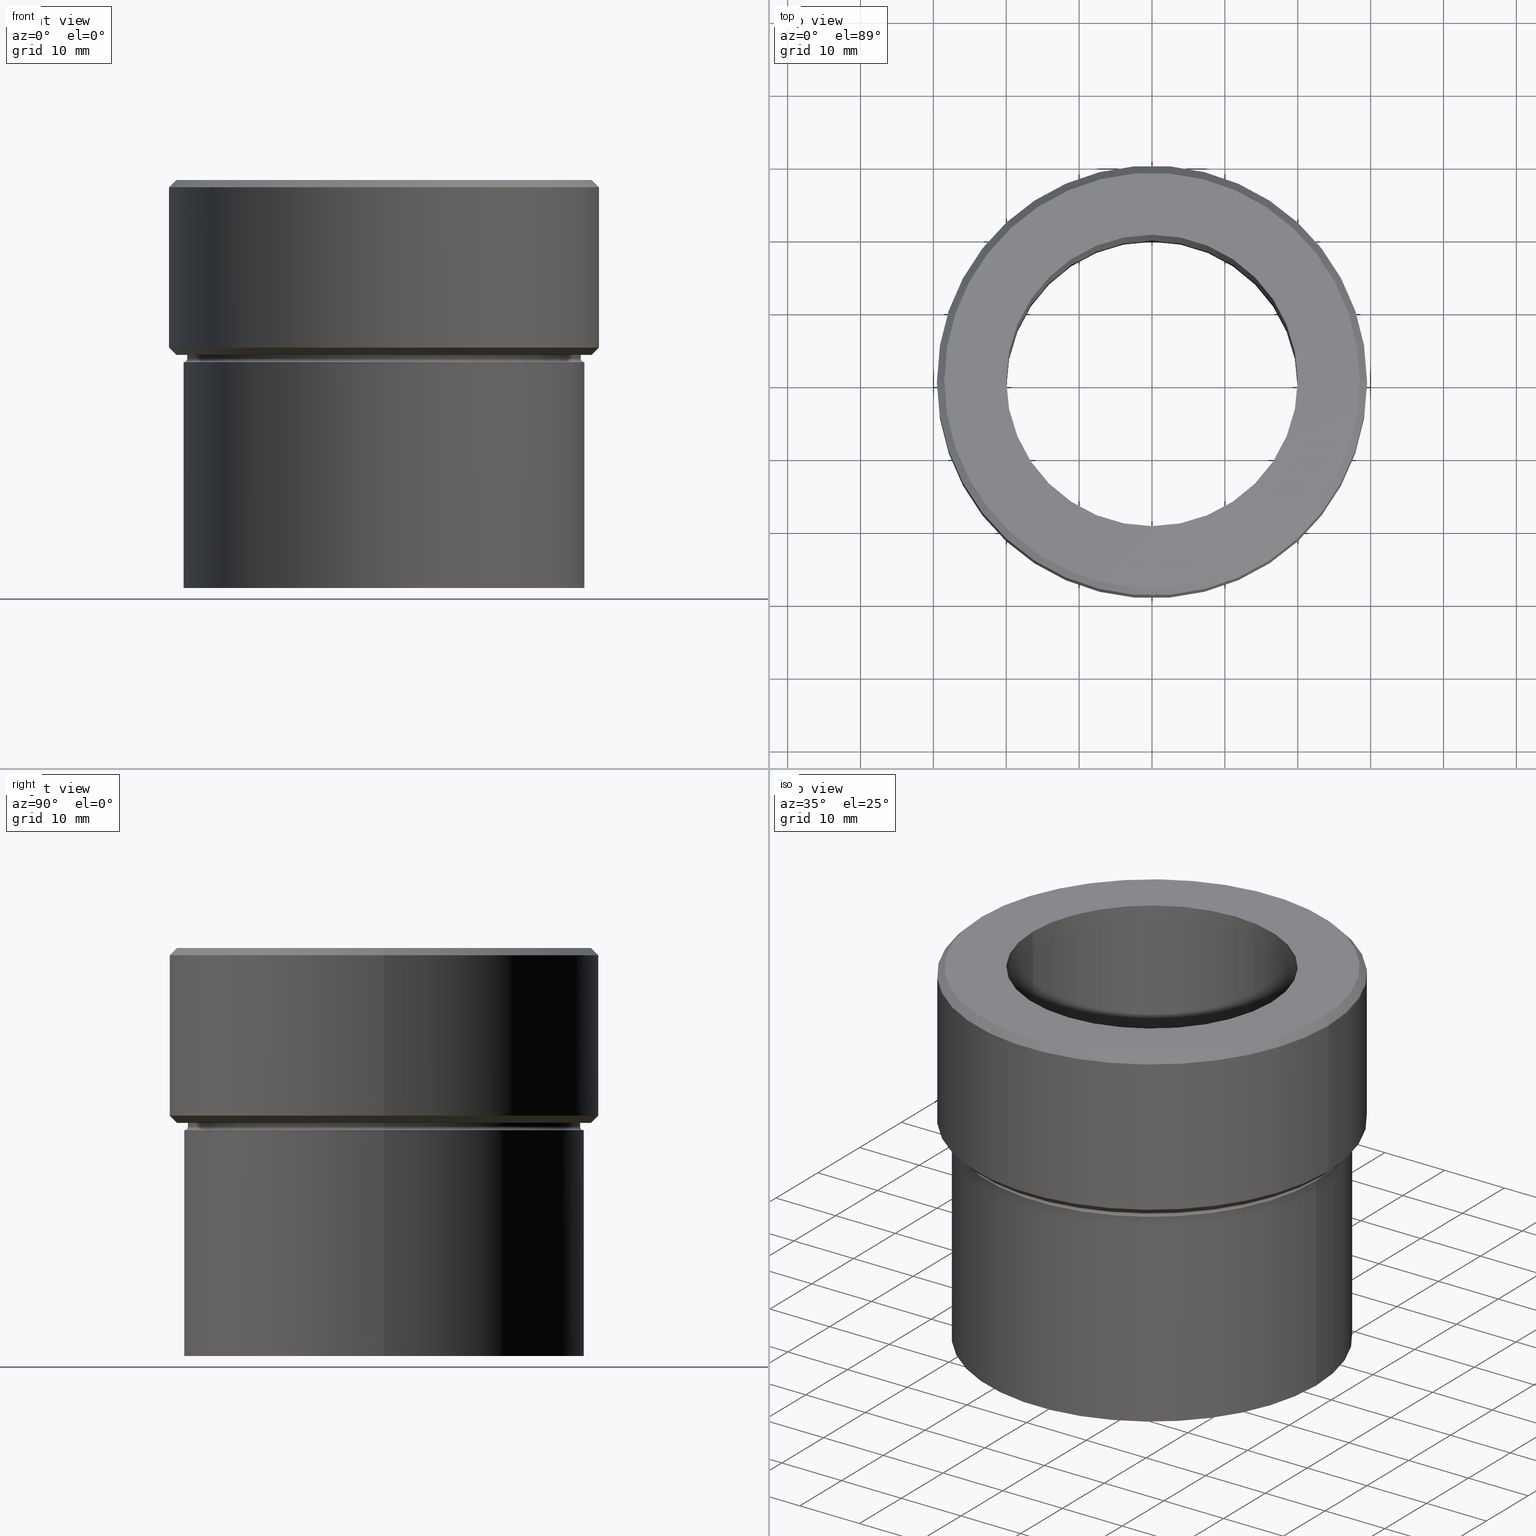
[diagram: canonical four-view strip — front | top / right | iso, engineering-drawing reading convention]
A machine part, canonical four-view strip (front | top / right | iso — engineering-drawing reading convention). The complete STEP part file that produces these views, byte-faithful:
ISO-10303-21;
HEADER;
FILE_DESCRIPTION (( 'STEP AP203' ),
    '1' );
FILE_NAME ('798a.STEP',
    '2024-01-08T12:24:33',
    ( '' ),
    ( '' ),
    'SwSTEP 2.0',
    'SolidWorks 2019',
    '' );
FILE_SCHEMA (( 'CONFIG_CONTROL_DESIGN' ));
ENDSEC;

DATA;
#1 = LINE ( 'NONE', #43, #47 ) ;
#2 = DIRECTION ( 'NONE',  ( 1.000000000000000000, 0.000000000000000000, 0.000000000000000000 ) ) ;
#3 = DIRECTION ( 'NONE',  ( 0.000000000000000000, 0.000000000000000000, -1.000000000000000000 ) ) ;
#4 = CC_DESIGN_DATE_AND_TIME_ASSIGNMENT ( #254, #506, ( #473 ) ) ;
#5 = APPROVAL_ROLE ( '' ) ;
#6 = ORIENTED_EDGE ( 'NONE', *, *, #100, .F. ) ;
#7 = CARTESIAN_POINT ( 'NONE',  ( -28.49999999999998224, 0.000000000000000000, 0.000000000000000000 ) ) ;
#8 = DIRECTION ( 'NONE',  ( -0.000000000000000000, -0.000000000000000000, 1.000000000000000000 ) ) ;
#9 = ORIENTED_EDGE ( 'NONE', *, *, #80, .T. ) ;
#10 = DIRECTION ( 'NONE',  ( -0.000000000000000000, -0.000000000000000000, 1.000000000000000000 ) ) ;
#11 = PERSON_AND_ORGANIZATION ( #318, #46 ) ;
#12 = EDGE_LOOP ( 'NONE', ( #245, #308, #94, #331 ) ) ;
#13 = ORIENTED_EDGE ( 'NONE', *, *, #498, .F. ) ;
#14 = CYLINDRICAL_SURFACE ( 'NONE', #385, 27.00000000000000355 ) ;
#15 = AXIS2_PLACEMENT_3D ( 'NONE', #200, #163, #65 ) ;
#16 = EDGE_LOOP ( 'NONE', ( #6, #397, #486, #30 ) ) ;
#17 = CIRCLE ( 'NONE', #294, 28.49999999999998224 ) ;
#18 = ADVANCED_FACE ( 'NONE', ( #404 ), #476, .T. ) ;
#19 = DIRECTION ( 'NONE',  ( 0.000000000000000000, 0.000000000000000000, -1.000000000000000000 ) ) ;
#20 = CYLINDRICAL_SURFACE ( 'NONE', #337, 20.00000000000000000 ) ;
#21 = COORDINATED_UNIVERSAL_TIME_OFFSET ( 1, 0, .AHEAD. ) ;
#22 = DESIGN_CONTEXT ( 'detailed design', #230, 'design' ) ;
#23 = CARTESIAN_POINT ( 'NONE',  ( 0.000000000000000000, 0.000000000000000000, -24.49999999999999645 ) ) ;
#24 = ORIENTED_EDGE ( 'NONE', *, *, #222, .T. ) ;
#25 = ORIENTED_EDGE ( 'NONE', *, *, #148, .F. ) ;
#26 = CARTESIAN_POINT ( 'NONE',  ( 28.49999999999998224, 0.000000000000000000, -24.00000000000000000 ) ) ;
#27 = PLANE ( 'NONE',  #411 ) ;
#28 = CC_DESIGN_APPROVAL ( #186, ( #483 ) ) ;
#29 = AXIS2_PLACEMENT_3D ( 'NONE', #415, #232, #413 ) ;
#30 = ORIENTED_EDGE ( 'NONE', *, *, #182, .T. ) ;
#31 = EDGE_CURVE ( 'NONE', #485, #124, #392, .T. ) ;
#32 = DIRECTION ( 'NONE',  ( -0.000000000000000000, -0.000000000000000000, 1.000000000000000000 ) ) ;
#33 = ADVANCED_FACE ( 'NONE', ( #363, #224 ), #275, .T. ) ;
#34 = EDGE_LOOP ( 'NONE', ( #296, #93, #505, #417 ) ) ;
#35 = EDGE_LOOP ( 'NONE', ( #342, #24, #64, #146 ) ) ;
#36 = VERTEX_POINT ( 'NONE', #113 ) ;
#37 = AXIS2_PLACEMENT_3D ( 'NONE', #229, #281, #42 ) ;
#38 = ADVANCED_FACE ( 'NONE', ( #450 ), #77, .T. ) ;
#39 = CARTESIAN_POINT ( 'NONE',  ( 0.000000000000000000, 0.000000000000000000, 0.000000000000000000 ) ) ;
#40 = CIRCLE ( 'NONE', #190, 29.50000000000000000 ) ;
#41 = CIRCLE ( 'NONE', #111, 28.49999999999998224 ) ;
#42 = DIRECTION ( 'NONE',  ( -1.000000000000000000, 1.224646799147349509E-16, 0.000000000000000000 ) ) ;
#43 = CARTESIAN_POINT ( 'NONE',  ( 27.50000000000000355, 0.000000000000000000, 0.000000000000000000 ) ) ;
#44 = AXIS2_PLACEMENT_3D ( 'NONE', #272, #184, #435 ) ;
#45 = EDGE_CURVE ( 'NONE', #189, #121, #409, .T. ) ;
#46 = ORGANIZATION ( 'NEUR�EN�', 'NEUR�EN�', '' ) ;
#47 = VECTOR ( 'NONE', #375, 1000.000000000000000 ) ;
#48 = PERSON_AND_ORGANIZATION ( #318, #46 ) ;
#49 = EDGE_LOOP ( 'NONE', ( #131, #285 ) ) ;
#50 = CARTESIAN_POINT ( 'NONE',  ( -27.00000000000000355, 3.306546357697854128E-15, -24.49999999999999645 ) ) ;
#51 = DIRECTION ( 'NONE',  ( -1.000000000000000000, 0.000000000000000000, 0.000000000000000000 ) ) ;
#52 = EDGE_LOOP ( 'NONE', ( #393, #389 ) ) ;
#53 = DIRECTION ( 'NONE',  ( -1.000000000000000000, 0.000000000000000000, 0.000000000000000000 ) ) ;
#54 = ADVANCED_FACE ( 'NONE', ( #322 ), #278, .T. ) ;
#55 = ORIENTED_EDGE ( 'NONE', *, *, #119, .T. ) ;
#56 = LINE ( 'NONE', #508, #151 ) ;
#57 = CARTESIAN_POINT ( 'NONE',  ( -28.49999999999998224, 3.551475717527322452E-15, -24.00000000000000000 ) ) ;
#58 = AXIS2_PLACEMENT_3D ( 'NONE', #106, #403, #218 ) ;
#59 = ORIENTED_EDGE ( 'NONE', *, *, #530, .T. ) ;
#60 = AXIS2_PLACEMENT_3D ( 'NONE', #23, #10, #164 ) ;
#61 = DIRECTION ( 'NONE',  ( 1.000000000000000000, 0.000000000000000000, 0.000000000000000000 ) ) ;
#62 = CARTESIAN_POINT ( 'NONE',  ( 0.000000000000000000, 0.000000000000000000, -1.000000000000004441 ) ) ;
#63 = COORDINATED_UNIVERSAL_TIME_OFFSET ( 1, 0, .AHEAD. ) ;
#64 = ORIENTED_EDGE ( 'NONE', *, *, #142, .T. ) ;
#65 = DIRECTION ( 'NONE',  ( 1.000000000000000000, 0.000000000000000000, 0.000000000000000000 ) ) ;
#66 = CARTESIAN_POINT ( 'NONE',  ( 0.000000000000000000, 0.000000000000000000, 0.000000000000000000 ) ) ;
#67 = EDGE_CURVE ( 'NONE', #179, #519, #478, .T. ) ;
#68 = AXIS2_PLACEMENT_3D ( 'NONE', #324, #246, #423 ) ;
#69 = CIRCLE ( 'NONE', #60, 27.00000000000000355 ) ;
#70 = EDGE_CURVE ( 'NONE', #128, #36, #176, .T. ) ;
#71 = DIRECTION ( 'NONE',  ( -0.7071067811865500152, 8.659560562354963673E-17, 0.7071067811865451302 ) ) ;
#72 = AXIS2_PLACEMENT_3D ( 'NONE', #292, #467, #340 ) ;
#73 = ORIENTED_EDGE ( 'NONE', *, *, #31, .T. ) ;
#74 = VERTEX_POINT ( 'NONE', #7 ) ;
#75 = DIRECTION ( 'NONE',  ( -0.000000000000000000, -0.000000000000000000, 1.000000000000000000 ) ) ;
#76 = PRODUCT_DEFINITION_SHAPE ( 'NONE', 'NONE',  #473 ) ;
#77 = CYLINDRICAL_SURFACE ( 'NONE', #480, 27.00000000000000355 ) ;
#78 = EDGE_CURVE ( 'NONE', #519, #179, #206, .T. ) ;
#79 = CARTESIAN_POINT ( 'NONE',  ( -20.00000000000000000, 2.449293598294706513E-15, -75.00000000000000000 ) ) ;
#80 = EDGE_CURVE ( 'NONE', #124, #335, #329, .T. ) ;
#81 = CARTESIAN_POINT ( 'NONE',  ( 0.000000000000000000, 0.000000000000000000, -56.00000000000000711 ) ) ;
#82 = CARTESIAN_POINT ( 'NONE',  ( 0.000000000000000000, 0.000000000000000000, -24.99999999999999645 ) ) ;
#83 = ORIENTED_EDGE ( 'NONE', *, *, #339, .F. ) ;
#84 = CARTESIAN_POINT ( 'NONE',  ( 20.00000000000000000, 0.000000000000000000, 0.000000000000000000 ) ) ;
#85 = ORIENTED_EDGE ( 'NONE', *, *, #45, .T. ) ;
#86 = AXIS2_PLACEMENT_3D ( 'NONE', #491, #196, #372 ) ;
#87 = DIRECTION ( 'NONE',  ( 1.000000000000000000, 0.000000000000000000, 0.000000000000000000 ) ) ;
#88 = VECTOR ( 'NONE', #122, 1000.000000000000000 ) ;
#89 = ORIENTED_EDGE ( 'NONE', *, *, #67, .F. ) ;
#90 = DIRECTION ( 'NONE',  ( -0.000000000000000000, -0.000000000000000000, 1.000000000000000000 ) ) ;
#91 = DIRECTION ( 'NONE',  ( -0.000000000000000000, -0.000000000000000000, 1.000000000000000000 ) ) ;
#92 = EDGE_CURVE ( 'NONE', #128, #255, #457, .T. ) ;
#93 = ORIENTED_EDGE ( 'NONE', *, *, #433, .T. ) ;
#94 = ORIENTED_EDGE ( 'NONE', *, *, #191, .T. ) ;
#95 = CYLINDRICAL_SURFACE ( 'NONE', #105, 29.50000000000000000 ) ;
#96 = SHAPE_DEFINITION_REPRESENTATION ( #76, #357 ) ;
#97 = EDGE_LOOP ( 'NONE', ( #502, #199, #55, #297 ) ) ;
#98 = APPLICATION_PROTOCOL_DEFINITION ( 'international standard', 'config_control_design', 1994, #144 ) ;
#99 = FACE_OUTER_BOUND ( 'NONE', #248, .T. ) ;
#100 = EDGE_CURVE ( 'NONE', #179, #345, #291, .T. ) ;
#101 = APPROVAL_STATUS ( 'not_yet_approved' ) ;
#102 = CARTESIAN_POINT ( 'NONE',  ( 0.000000000000000000, 0.000000000000000000, 0.000000000000000000 ) ) ;
#103 = CARTESIAN_POINT ( 'NONE',  ( 29.50000000000000000, 0.000000000000000000, 0.000000000000000000 ) ) ;
#104 = ORIENTED_EDGE ( 'NONE', *, *, #354, .F. ) ;
#105 = AXIS2_PLACEMENT_3D ( 'NONE', #350, #215, #477 ) ;
#106 = CARTESIAN_POINT ( 'NONE',  ( 0.000000000000000000, 0.000000000000000000, -56.00000000000000711 ) ) ;
#107 = CIRCLE ( 'NONE', #29, 27.00000000000000355 ) ;
#108 = ADVANCED_FACE ( 'NONE', ( #381 ), #437, .T. ) ;
#109 = LOCAL_TIME ( 13, 24, 33.00000000000000000, #496 ) ;
#110 = DIRECTION ( 'NONE',  ( 0.000000000000000000, -0.000000000000000000, 1.000000000000000000 ) ) ;
#111 = AXIS2_PLACEMENT_3D ( 'NONE', #327, #490, #238 ) ;
#112 = CARTESIAN_POINT ( 'NONE',  ( 0.000000000000000000, 0.000000000000000000, -22.99999999999999289 ) ) ;
#113 = CARTESIAN_POINT ( 'NONE',  ( -27.50000000000000355, 3.367778697655222096E-15, -24.99999999999999645 ) ) ;
#114 = APPROVAL ( #101, 'NEUR�EN�' ) ;
#115 = ORIENTED_EDGE ( 'NONE', *, *, #78, .T. ) ;
#116 = VECTOR ( 'NONE', #153, 1000.000000000000000 ) ;
#117 = DIRECTION ( 'NONE',  ( 1.000000000000000000, 0.000000000000000000, 0.000000000000000000 ) ) ;
#118 = APPROVAL_PERSON_ORGANIZATION ( #512, #270, #5 ) ;
#119 = EDGE_CURVE ( 'NONE', #74, #335, #494, .T. ) ;
#120 = CARTESIAN_POINT ( 'NONE',  ( -28.49999999999998224, 0.000000000000000000, 0.000000000000000000 ) ) ;
#121 = VERTEX_POINT ( 'NONE', #369 ) ;
#122 = DIRECTION ( 'NONE',  ( -0.7071067811865512365, 0.000000000000000000, -0.7071067811865439090 ) ) ;
#123 = APPROVAL_STATUS ( 'not_yet_approved' ) ;
#124 = VERTEX_POINT ( 'NONE', #283 ) ;
#125 = CIRCLE ( 'NONE', #58, 27.50000000000000711 ) ;
#126 = VERTEX_POINT ( 'NONE', #84 ) ;
#127 = APPROVAL_ROLE ( '' ) ;
#128 = VERTEX_POINT ( 'NONE', #50 ) ;
#129 = CARTESIAN_POINT ( 'NONE',  ( 0.000000000000000000, 0.000000000000000000, 0.000000000000000000 ) ) ;
#130 = DIRECTION ( 'NONE',  ( 1.000000000000000000, 0.000000000000000000, 0.000000000000000000 ) ) ;
#131 = ORIENTED_EDGE ( 'NONE', *, *, #339, .T. ) ;
#132 = DIRECTION ( 'NONE',  ( 0.000000000000000000, 0.000000000000000000, -1.000000000000000000 ) ) ;
#133 = ORIENTED_EDGE ( 'NONE', *, *, #367, .T. ) ;
#134 = PERSON_AND_ORGANIZATION_ROLE ( 'classification_officer' ) ;
#135 = EDGE_LOOP ( 'NONE', ( #177, #300, #261, #497 ) ) ;
#136 = DIRECTION ( 'NONE',  ( 0.7071067811865500152, 0.000000000000000000, 0.7071067811865451302 ) ) ;
#137 = AXIS2_PLACEMENT_3D ( 'NONE', #344, #509, #61 ) ;
#138 = CC_DESIGN_PERSON_AND_ORGANIZATION_ASSIGNMENT ( #349, #390, ( #152 ) ) ;
#139 = LINE ( 'NONE', #445, #525 ) ;
#140 = DIRECTION ( 'NONE',  ( 0.000000000000000000, 0.000000000000000000, -1.000000000000000000 ) ) ;
#141 = DIRECTION ( 'NONE',  ( -1.000000000000000000, 0.000000000000000000, -0.000000000000000000 ) ) ;
#142 = EDGE_CURVE ( 'NONE', #513, #210, #1, .T. ) ;
#143 = AXIS2_PLACEMENT_3D ( 'NONE', #185, #110, #405 ) ;
#144 = APPLICATION_CONTEXT ( 'configuration controlled 3d designs of mechanical parts and assemblies' ) ;
#145 = CARTESIAN_POINT ( 'NONE',  ( -27.50000000000000355, 3.367778697655222096E-15, 0.000000000000000000 ) ) ;
#146 = ORIENTED_EDGE ( 'NONE', *, *, #454, .F. ) ;
#147 = FACE_BOUND ( 'NONE', #52, .T. ) ;
#148 = EDGE_CURVE ( 'NONE', #273, #255, #107, .T. ) ;
#149 = CIRCLE ( 'NONE', #86, 0.5000000000000004441 ) ;
#150 = ORIENTED_EDGE ( 'NONE', *, *, #481, .F. ) ;
#151 = VECTOR ( 'NONE', #309, 1000.000000000000000 ) ;
#152 = PRODUCT ( '798a', '798a', '', ( #257 ) ) ;
#153 = DIRECTION ( 'NONE',  ( 0.7071067811865512365, 8.659560562354979697E-17, -0.7071067811865439090 ) ) ;
#154 = VECTOR ( 'NONE', #90, 1000.000000000000000 ) ;
#155 = CC_DESIGN_PERSON_AND_ORGANIZATION_ASSIGNMENT ( #48, #159, ( #529 ) ) ;
#156 = CARTESIAN_POINT ( 'NONE',  ( -27.50000000000001066, 3.367778697655222885E-15, -56.00000000000000711 ) ) ;
#157 = DIRECTION ( 'NONE',  ( -0.000000000000000000, -0.000000000000000000, 1.000000000000000000 ) ) ;
#158 = DIRECTION ( 'NONE',  ( -1.000000000000000000, 0.000000000000000000, 0.000000000000000000 ) ) ;
#159 = PERSON_AND_ORGANIZATION_ROLE ( 'creator' ) ;
#160 = DIRECTION ( 'NONE',  ( -0.000000000000000000, -0.000000000000000000, 1.000000000000000000 ) ) ;
#161 = CALENDAR_DATE ( 2024, 8, 1 ) ;
#162 = ORIENTED_EDGE ( 'NONE', *, *, #119, .F. ) ;
#163 = DIRECTION ( 'NONE',  ( -0.000000000000000000, -0.000000000000000000, 1.000000000000000000 ) ) ;
#164 = DIRECTION ( 'NONE',  ( 1.000000000000000000, 0.000000000000000000, 0.000000000000000000 ) ) ;
#165 = ORIENTED_EDGE ( 'NONE', *, *, #142, .F. ) ;
#166 = ADVANCED_FACE ( 'NONE', ( #194 ), #399, .T. ) ;
#167 = CIRCLE ( 'NONE', #341, 28.49999999999998224 ) ;
#168 = DATE_AND_TIME ( #431, #453 ) ;
#169 = ORIENTED_EDGE ( 'NONE', *, *, #354, .T. ) ;
#170 = APPROVAL_DATE_TIME ( #173, #114 ) ;
#171 = DIRECTION ( 'NONE',  ( -0.000000000000000000, -0.000000000000000000, 1.000000000000000000 ) ) ;
#172 = ORIENTED_EDGE ( 'NONE', *, *, #191, .F. ) ;
#173 = DATE_AND_TIME ( #516, #439 ) ;
#174 = LINE ( 'NONE', #514, #312 ) ;
#175 = EDGE_CURVE ( 'NONE', #365, #469, #41, .T. ) ;
#176 = CIRCLE ( 'NONE', #37, 0.5000000000000004441 ) ;
#177 = ORIENTED_EDGE ( 'NONE', *, *, #175, .F. ) ;
#178 = APPLICATION_PROTOCOL_DEFINITION ( 'international standard', 'config_control_design', 1994, #230 ) ;
#179 = VERTEX_POINT ( 'NONE', #418 ) ;
#180 = CC_DESIGN_APPROVAL ( #270, ( #529 ) ) ;
#181 = AXIS2_PLACEMENT_3D ( 'NONE', #219, #32, #364 ) ;
#182 = EDGE_CURVE ( 'NONE', #126, #345, #360, .T. ) ;
#183 = DIRECTION ( 'NONE',  ( -0.000000000000000000, -0.000000000000000000, 1.000000000000000000 ) ) ;
#184 = DIRECTION ( 'NONE',  ( -0.000000000000000000, -0.000000000000000000, 1.000000000000000000 ) ) ;
#185 = CARTESIAN_POINT ( 'NONE',  ( 0.000000000000000000, 0.000000000000000000, 0.000000000000000000 ) ) ;
#186 = APPROVAL ( #123, 'NEUR�EN�' ) ;
#187 = AXIS2_PLACEMENT_3D ( 'NONE', #39, #446, #353 ) ;
#188 = AXIS2_PLACEMENT_3D ( 'NONE', #234, #461, #192 ) ;
#189 = VERTEX_POINT ( 'NONE', #427 ) ;
#190 = AXIS2_PLACEMENT_3D ( 'NONE', #62, #250, #130 ) ;
#191 = EDGE_CURVE ( 'NONE', #487, #273, #56, .T. ) ;
#192 = DIRECTION ( 'NONE',  ( 1.000000000000000000, 0.000000000000000000, 0.000000000000000000 ) ) ;
#193 = ORIENTED_EDGE ( 'NONE', *, *, #78, .F. ) ;
#194 = FACE_OUTER_BOUND ( 'NONE', #135, .T. ) ;
#195 = CLOSED_SHELL ( 'NONE', ( #373, #424, #262, #166, #443, #401, #54, #316, #468, #33, #38, #18, #202, #108, #520, #412, #379 ) ) ;
#196 = DIRECTION ( 'NONE',  ( 0.000000000000000000, -1.000000000000000000, 0.000000000000000000 ) ) ;
#197 = CARTESIAN_POINT ( 'NONE',  ( 0.000000000000000000, 0.000000000000000000, -56.00000000000000711 ) ) ;
#198 = AXIS2_PLACEMENT_3D ( 'NONE', #456, #233, #414 ) ;
#199 = ORIENTED_EDGE ( 'NONE', *, *, #511, .F. ) ;
#200 = CARTESIAN_POINT ( 'NONE',  ( 0.000000000000000000, 0.000000000000000000, 0.000000000000000000 ) ) ;
#201 = CYLINDRICAL_SURFACE ( 'NONE', #503, 20.00000000000000000 ) ;
#202 = ADVANCED_FACE ( 'NONE', ( #355, #395 ), #27, .T. ) ;
#203 = EDGE_LOOP ( 'NONE', ( #73, #9, #507, #252 ) ) ;
#204 = CARTESIAN_POINT ( 'NONE',  ( -27.00000000000000355, 3.306546357697854128E-15, 0.000000000000000000 ) ) ;
#205 = DIRECTION ( 'NONE',  ( -0.000000000000000000, -0.000000000000000000, 1.000000000000000000 ) ) ;
#206 = CIRCLE ( 'NONE', #402, 20.00000000000000000 ) ;
#207 = ORIENTED_EDGE ( 'NONE', *, *, #488, .T. ) ;
#208 = CIRCLE ( 'NONE', #241, 29.50000000000000000 ) ;
#209 = AXIS2_PLACEMENT_3D ( 'NONE', #82, #463, #87 ) ;
#210 = VERTEX_POINT ( 'NONE', #521 ) ;
#211 = EDGE_CURVE ( 'NONE', #121, #335, #442, .T. ) ;
#212 = FACE_OUTER_BOUND ( 'NONE', #16, .T. ) ;
#213 = PERSON_AND_ORGANIZATION ( #318, #46 ) ;
#214 = ORIENTED_EDGE ( 'NONE', *, *, #527, .T. ) ;
#215 = DIRECTION ( 'NONE',  ( -0.000000000000000000, -0.000000000000000000, 1.000000000000000000 ) ) ;
#216 = DIRECTION ( 'NONE',  ( -0.000000000000000000, -0.000000000000000000, 1.000000000000000000 ) ) ;
#217 = CIRCLE ( 'NONE', #181, 27.00000000000000355 ) ;
#218 = DIRECTION ( 'NONE',  ( 1.000000000000000000, 0.000000000000000000, 0.000000000000000000 ) ) ;
#219 = CARTESIAN_POINT ( 'NONE',  ( 0.000000000000000000, 0.000000000000000000, -24.00000000000000000 ) ) ;
#220 = LOCAL_TIME ( 13, 24, 33.00000000000000000, #63 ) ;
#221 = ORIENTED_EDGE ( 'NONE', *, *, #511, .T. ) ;
#222 = EDGE_CURVE ( 'NONE', #426, #513, #125, .T. ) ;
#223 = ORIENTED_EDGE ( 'NONE', *, *, #407, .T. ) ;
#224 = FACE_BOUND ( 'NONE', #465, .T. ) ;
#225 = DIRECTION ( 'NONE',  ( -1.000000000000000000, 0.000000000000000000, 0.000000000000000000 ) ) ;
#226 = DIRECTION ( 'NONE',  ( -0.000000000000000000, -0.000000000000000000, 1.000000000000000000 ) ) ;
#227 = CC_DESIGN_DATE_AND_TIME_ASSIGNMENT ( #168, #501, ( #483 ) ) ;
#228 = AXIS2_PLACEMENT_3D ( 'NONE', #371, #160, #2 ) ;
#229 = CARTESIAN_POINT ( 'NONE',  ( -27.50000000000000355, 3.367778697655222096E-15, -24.49999999999999645 ) ) ;
#230 = APPLICATION_CONTEXT ( 'configuration controlled 3d designs of mechanical parts and assemblies' ) ;
#231 = TOROIDAL_SURFACE ( 'NONE', #410, 27.50000000000000355, 0.5000000000000000000 ) ;
#232 = DIRECTION ( 'NONE',  ( -0.000000000000000000, -0.000000000000000000, 1.000000000000000000 ) ) ;
#233 = DIRECTION ( 'NONE',  ( -0.000000000000000000, -0.000000000000000000, 1.000000000000000000 ) ) ;
#234 = CARTESIAN_POINT ( 'NONE',  ( 0.000000000000000000, 0.000000000000000000, -22.99999999999999289 ) ) ;
#235 = AXIS2_PLACEMENT_3D ( 'NONE', #66, #216, #117 ) ;
#236 = DATE_AND_TIME ( #161, #220 ) ;
#237 = EDGE_LOOP ( 'NONE', ( #115, #380, #214, #356 ) ) ;
#238 = DIRECTION ( 'NONE',  ( -1.000000000000000000, 0.000000000000000000, 0.000000000000000000 ) ) ;
#239 = CIRCLE ( 'NONE', #198, 20.00000000000000000 ) ;
#240 = EDGE_LOOP ( 'NONE', ( #193, #89 ) ) ;
#241 = AXIS2_PLACEMENT_3D ( 'NONE', #112, #75, #225 ) ;
#242 = DIRECTION ( 'NONE',  ( 1.000000000000000000, 0.000000000000000000, 0.000000000000000000 ) ) ;
#243 = FACE_OUTER_BOUND ( 'NONE', #34, .T. ) ;
#244 = APPROVAL_DATE_TIME ( #376, #270 ) ;
#245 = ORIENTED_EDGE ( 'NONE', *, *, #92, .F. ) ;
#246 = DIRECTION ( 'NONE',  ( -0.000000000000000000, -0.000000000000000000, 1.000000000000000000 ) ) ;
#247 = DIRECTION ( 'NONE',  ( -0.000000000000000000, -0.000000000000000000, 1.000000000000000000 ) ) ;
#248 = EDGE_LOOP ( 'NONE', ( #325, #391, #59, #169 ) ) ;
#249 = UNCERTAINTY_MEASURE_WITH_UNIT (LENGTH_MEASURE( 1.000000000000000082E-05 ), #434, 'distance_accuracy_value', 'NONE');
#250 = DIRECTION ( 'NONE',  ( 0.000000000000000000, 0.000000000000000000, -1.000000000000000000 ) ) ;
#251 = EDGE_CURVE ( 'NONE', #519, #126, #444, .T. ) ;
#252 = ORIENTED_EDGE ( 'NONE', *, *, #479, .F. ) ;
#253 = CARTESIAN_POINT ( 'NONE',  ( 0.000000000000000000, 0.000000000000000000, -24.00000000000000000 ) ) ;
#254 = DATE_AND_TIME ( #302, #109 ) ;
#255 = VERTEX_POINT ( 'NONE', #315 ) ;
#256 = FACE_OUTER_BOUND ( 'NONE', #237, .T. ) ;
#257 = MECHANICAL_CONTEXT ( 'NONE', #144, 'mechanical' ) ;
#258 = DIRECTION ( 'NONE',  ( 1.000000000000000000, 0.000000000000000000, 0.000000000000000000 ) ) ;
#259 = DIRECTION ( 'NONE',  ( -0.000000000000000000, -0.000000000000000000, 1.000000000000000000 ) ) ;
#260 = CARTESIAN_POINT ( 'NONE',  ( 0.000000000000000000, 0.000000000000000000, -1.000000000000004441 ) ) ;
#261 = ORIENTED_EDGE ( 'NONE', *, *, #31, .F. ) ;
#262 = ADVANCED_FACE ( 'NONE', ( #271 ), #466, .T. ) ;
#263 = CIRCLE ( 'NONE', #484, 27.50000000000000355 ) ;
#264 = DIRECTION ( 'NONE',  ( 1.000000000000000000, 0.000000000000000000, 0.000000000000000000 ) ) ;
#265 = VECTOR ( 'NONE', #8, 1000.000000000000000 ) ;
#266 = TOROIDAL_SURFACE ( 'NONE', #452, 27.50000000000000355, 0.5000000000000000000 ) ;
#267 = DIRECTION ( 'NONE',  ( 1.000000000000000000, 0.000000000000000000, 0.000000000000000000 ) ) ;
#268 = CARTESIAN_POINT ( 'NONE',  ( 27.00000000000000355, 0.000000000000000000, -24.00000000000000000 ) ) ;
#269 = ORIENTED_EDGE ( 'NONE', *, *, #454, .T. ) ;
#270 = APPROVAL ( #289, 'NEUR�EN�' ) ;
#271 = FACE_OUTER_BOUND ( 'NONE', #348, .T. ) ;
#272 = CARTESIAN_POINT ( 'NONE',  ( 0.000000000000000000, 0.000000000000000000, -22.99999999999999289 ) ) ;
#273 = VERTEX_POINT ( 'NONE', #268 ) ;
#274 = CARTESIAN_POINT ( 'NONE',  ( 0.000000000000000000, 0.000000000000000000, -24.49999999999999645 ) ) ;
#275 = PLANE ( 'NONE',  #495 ) ;
#276 = EDGE_CURVE ( 'NONE', #189, #74, #167, .T. ) ;
#277 = ORIENTED_EDGE ( 'NONE', *, *, #92, .T. ) ;
#278 = CYLINDRICAL_SURFACE ( 'NONE', #235, 29.50000000000000000 ) ;
#279 = AXIS2_PLACEMENT_3D ( 'NONE', #313, #398, #264 ) ;
#280 = CC_DESIGN_SECURITY_CLASSIFICATION ( #483, ( #529 ) ) ;
#281 = DIRECTION ( 'NONE',  ( 1.224646799147353207E-16, 1.000000000000000000, 0.000000000000000000 ) ) ;
#282 = VECTOR ( 'NONE', #183, 1000.000000000000000 ) ;
#283 = CARTESIAN_POINT ( 'NONE',  ( -29.50000000000000000, 3.612708057484691604E-15, -22.99999999999999289 ) ) ;
#284 = CYLINDRICAL_SURFACE ( 'NONE', #387, 27.50000000000000355 ) ;
#285 = ORIENTED_EDGE ( 'NONE', *, *, #175, .T. ) ;
#286 = CC_DESIGN_PERSON_AND_ORGANIZATION_ASSIGNMENT ( #334, #134, ( #483 ) ) ;
#287 = DIRECTION ( 'NONE',  ( 0.000000000000000000, 0.000000000000000000, -1.000000000000000000 ) ) ;
#288 = DIRECTION ( 'NONE',  ( 1.000000000000000000, 0.000000000000000000, 0.000000000000000000 ) ) ;
#289 = APPROVAL_STATUS ( 'not_yet_approved' ) ;
#290 = ORIENTED_EDGE ( 'NONE', *, *, #359, .F. ) ;
#291 = LINE ( 'NONE', #79, #154 ) ;
#292 = CARTESIAN_POINT ( 'NONE',  ( 0.000000000000000000, 0.000000000000000000, -56.00000000000000711 ) ) ;
#293 = ORIENTED_EDGE ( 'NONE', *, *, #299, .F. ) ;
#294 = AXIS2_PLACEMENT_3D ( 'NONE', #253, #346, #51 ) ;
#295 = DIRECTION ( 'NONE',  ( 1.000000000000000000, 0.000000000000000000, 0.000000000000000000 ) ) ;
#296 = ORIENTED_EDGE ( 'NONE', *, *, #80, .F. ) ;
#297 = ORIENTED_EDGE ( 'NONE', *, *, #211, .F. ) ;
#298 = CARTESIAN_POINT ( 'NONE',  ( 0.000000000000000000, 0.000000000000000000, 0.000000000000000000 ) ) ;
#299 = EDGE_CURVE ( 'NONE', #365, #124, #139, .T. ) ;
#300 = ORIENTED_EDGE ( 'NONE', *, *, #299, .T. ) ;
#301 = CARTESIAN_POINT ( 'NONE',  ( 0.000000000000000000, 0.000000000000000000, -75.00000000000000000 ) ) ;
#302 = CALENDAR_DATE ( 2024, 8, 1 ) ;
#303 = EDGE_LOOP ( 'NONE', ( #221, #474 ) ) ;
#304 =( NAMED_UNIT ( * ) PLANE_ANGLE_UNIT ( ) SI_UNIT ( $, .RADIAN. ) );
#305 = DIRECTION ( 'NONE',  ( 1.000000000000000000, 0.000000000000000000, 0.000000000000000000 ) ) ;
#306 = DIRECTION ( 'NONE',  ( -0.000000000000000000, -0.000000000000000000, 1.000000000000000000 ) ) ;
#307 =( NAMED_UNIT ( * ) SI_UNIT ( $, .STERADIAN. ) SOLID_ANGLE_UNIT ( ) );
#308 = ORIENTED_EDGE ( 'NONE', *, *, #481, .T. ) ;
#309 = DIRECTION ( 'NONE',  ( -0.000000000000000000, -0.000000000000000000, 1.000000000000000000 ) ) ;
#310 = EDGE_CURVE ( 'NONE', #255, #273, #217, .T. ) ;
#311 = DIRECTION ( 'NONE',  ( -1.000000000000000000, 0.000000000000000000, 0.000000000000000000 ) ) ;
#312 = VECTOR ( 'NONE', #136, 1000.000000000000114 ) ;
#313 = CARTESIAN_POINT ( 'NONE',  ( 0.000000000000000000, 0.000000000000000000, -24.49999999999999645 ) ) ;
#314 = CIRCLE ( 'NONE', #209, 27.50000000000000355 ) ;
#315 = CARTESIAN_POINT ( 'NONE',  ( -27.00000000000000355, 3.306546357697854128E-15, -24.00000000000000000 ) ) ;
#316 = ADVANCED_FACE ( 'NONE', ( #147, #482 ), #447, .T. ) ;
#317 = CARTESIAN_POINT ( 'NONE',  ( 0.000000000000000000, 0.000000000000000000, 0.000000000000000000 ) ) ;
#318 = PERSON ( 'NEUR�EN�', 'NEUR�EN�', 'NEUR�EN�', ('NEUR�EN�'), ('NEUR�EN�'), ('NEUR�EN�') ) ;
#319 = FACE_OUTER_BOUND ( 'NONE', #377, .T. ) ;
#320 = CIRCLE ( 'NONE', #72, 27.50000000000000711 ) ;
#321 = MANIFOLD_SOLID_BREP ( 'Odebrat vysunut�m1', #195 ) ;
#322 = FACE_OUTER_BOUND ( 'NONE', #203, .T. ) ;
#323 = ORIENTED_EDGE ( 'NONE', *, *, #222, .F. ) ;
#324 = CARTESIAN_POINT ( 'NONE',  ( 0.000000000000000000, 0.000000000000000000, 0.000000000000000000 ) ) ;
#325 = ORIENTED_EDGE ( 'NONE', *, *, #70, .F. ) ;
#326 = APPROVAL_PERSON_ORGANIZATION ( #472, #186, #127 ) ;
#327 = CARTESIAN_POINT ( 'NONE',  ( 0.000000000000000000, 0.000000000000000000, -24.00000000000000000 ) ) ;
#328 = CC_DESIGN_PERSON_AND_ORGANIZATION_ASSIGNMENT ( #213, #470, ( #473 ) ) ;
#329 = LINE ( 'NONE', #422, #528 ) ;
#330 = CARTESIAN_POINT ( 'NONE',  ( 0.000000000000000000, 0.000000000000000000, -75.00000000000000000 ) ) ;
#331 = ORIENTED_EDGE ( 'NONE', *, *, #310, .F. ) ;
#332 = DIRECTION ( 'NONE',  ( 1.000000000000000000, 0.000000000000000000, 0.000000000000000000 ) ) ;
#333 = CARTESIAN_POINT ( 'NONE',  ( 0.000000000000000000, 0.000000000000000000, 0.000000000000000000 ) ) ;
#334 = PERSON_AND_ORGANIZATION ( #318, #46 ) ;
#335 = VERTEX_POINT ( 'NONE', #462 ) ;
#336 = DIRECTION ( 'NONE',  ( -1.000000000000000000, 0.000000000000000000, 0.000000000000000000 ) ) ;
#337 = AXIS2_PLACEMENT_3D ( 'NONE', #330, #91, #295 ) ;
#338 = CONICAL_SURFACE ( 'NONE', #374, 28.49999999999998224, 0.7853981633974533860 ) ;
#339 = EDGE_CURVE ( 'NONE', #469, #365, #17, .T. ) ;
#340 = DIRECTION ( 'NONE',  ( 1.000000000000000000, 0.000000000000000000, 0.000000000000000000 ) ) ;
#341 = AXIS2_PLACEMENT_3D ( 'NONE', #317, #306, #267 ) ;
#342 = ORIENTED_EDGE ( 'NONE', *, *, #488, .F. ) ;
#343 = CARTESIAN_POINT ( 'NONE',  ( 0.000000000000000000, 27.50000000000000711, -56.00000000000000711 ) ) ;
#344 = CARTESIAN_POINT ( 'NONE',  ( 0.000000000000000000, 0.000000000000000000, 0.000000000000000000 ) ) ;
#345 = VERTEX_POINT ( 'NONE', #430 ) ;
#346 = DIRECTION ( 'NONE',  ( 0.000000000000000000, 0.000000000000000000, -1.000000000000000000 ) ) ;
#347 = CALENDAR_DATE ( 2024, 8, 1 ) ;
#348 = EDGE_LOOP ( 'NONE', ( #384, #85, #290, #162 ) ) ;
#349 = PERSON_AND_ORGANIZATION ( #318, #46 ) ;
#350 = CARTESIAN_POINT ( 'NONE',  ( 0.000000000000000000, 0.000000000000000000, 0.000000000000000000 ) ) ;
#351 = PERSON_AND_ORGANIZATION ( #318, #46 ) ;
#352 =( GEOMETRIC_REPRESENTATION_CONTEXT ( 3 ) GLOBAL_UNCERTAINTY_ASSIGNED_CONTEXT ( ( #249 ) ) GLOBAL_UNIT_ASSIGNED_CONTEXT ( ( #434, #304, #307 ) ) REPRESENTATION_CONTEXT ( 'NONE', 'WORKASPACE' ) );
#353 = DIRECTION ( 'NONE',  ( 1.000000000000000000, 0.000000000000000000, 0.000000000000000000 ) ) ;
#354 = EDGE_CURVE ( 'NONE', #210, #36, #263, .T. ) ;
#355 = FACE_BOUND ( 'NONE', #240, .T. ) ;
#356 = ORIENTED_EDGE ( 'NONE', *, *, #251, .F. ) ;
#357 = ADVANCED_BREP_SHAPE_REPRESENTATION ( '798a', ( #321, #137 ), #352 ) ;
#358 = DIRECTION ( 'NONE',  ( 0.000000000000000000, 0.000000000000000000, -1.000000000000000000 ) ) ;
#359 = EDGE_CURVE ( 'NONE', #335, #121, #40, .T. ) ;
#360 = CIRCLE ( 'NONE', #15, 20.00000000000000000 ) ;
#361 = VECTOR ( 'NONE', #259, 1000.000000000000000 ) ;
#362 = CARTESIAN_POINT ( 'NONE',  ( 20.00000000000000000, 0.000000000000000000, -75.00000000000000000 ) ) ;
#363 = FACE_OUTER_BOUND ( 'NONE', #49, .T. ) ;
#364 = DIRECTION ( 'NONE',  ( 1.000000000000000000, 0.000000000000000000, 0.000000000000000000 ) ) ;
#365 = VERTEX_POINT ( 'NONE', #57 ) ;
#366 = CIRCLE ( 'NONE', #68, 28.49999999999998224 ) ;
#367 = EDGE_CURVE ( 'NONE', #487, #128, #69, .T. ) ;
#368 = CARTESIAN_POINT ( 'NONE',  ( 0.000000000000000000, 29.50000000000000000, -24.00000000000000000 ) ) ;
#369 = CARTESIAN_POINT ( 'NONE',  ( 29.50000000000000000, 0.000000000000000000, -1.000000000000004441 ) ) ;
#370 = DIRECTION ( 'NONE',  ( 1.000000000000000000, 0.000000000000000000, 0.000000000000000000 ) ) ;
#371 = CARTESIAN_POINT ( 'NONE',  ( 0.000000000000000000, 0.000000000000000000, -22.99999999999999289 ) ) ;
#372 = DIRECTION ( 'NONE',  ( 0.000000000000000000, 0.000000000000000000, -1.000000000000000000 ) ) ;
#373 = ADVANCED_FACE ( 'NONE', ( #256 ), #20, .F. ) ;
#374 = AXIS2_PLACEMENT_3D ( 'NONE', #129, #19, #158 ) ;
#375 = DIRECTION ( 'NONE',  ( -0.000000000000000000, -0.000000000000000000, 1.000000000000000000 ) ) ;
#376 = DATE_AND_TIME ( #347, #429 ) ;
#377 = EDGE_LOOP ( 'NONE', ( #150, #440, #269, #432 ) ) ;
#378 = CARTESIAN_POINT ( 'NONE',  ( 0.000000000000000000, 0.000000000000000000, -24.49999999999999645 ) ) ;
#379 = ADVANCED_FACE ( 'NONE', ( #212 ), #201, .F. ) ;
#380 = ORIENTED_EDGE ( 'NONE', *, *, #100, .T. ) ;
#381 = FACE_OUTER_BOUND ( 'NONE', #436, .T. ) ;
#382 = AXIS2_PLACEMENT_3D ( 'NONE', #81, #287, #53 ) ;
#383 = CARTESIAN_POINT ( 'NONE',  ( 27.50000000000000711, 0.000000000000000000, -56.00000000000000711 ) ) ;
#384 = ORIENTED_EDGE ( 'NONE', *, *, #276, .F. ) ;
#385 = AXIS2_PLACEMENT_3D ( 'NONE', #298, #171, #332 ) ;
#386 = FACE_OUTER_BOUND ( 'NONE', #97, .T. ) ;
#387 = AXIS2_PLACEMENT_3D ( 'NONE', #333, #459, #288 ) ;
#388 = APPROVAL_DATE_TIME ( #236, #186 ) ;
#389 = ORIENTED_EDGE ( 'NONE', *, *, #527, .F. ) ;
#390 = PERSON_AND_ORGANIZATION_ROLE ( 'design_owner' ) ;
#391 = ORIENTED_EDGE ( 'NONE', *, *, #367, .F. ) ;
#392 = CIRCLE ( 'NONE', #44, 29.50000000000000000 ) ;
#393 = ORIENTED_EDGE ( 'NONE', *, *, #182, .F. ) ;
#394 = CC_DESIGN_PERSON_AND_ORGANIZATION_ASSIGNMENT ( #11, #492, ( #529 ) ) ;
#395 = FACE_OUTER_BOUND ( 'NONE', #458, .T. ) ;
#396 = APPROVAL_PERSON_ORGANIZATION ( #351, #114, #475 ) ;
#397 = ORIENTED_EDGE ( 'NONE', *, *, #67, .T. ) ;
#398 = DIRECTION ( 'NONE',  ( -0.000000000000000000, -0.000000000000000000, 1.000000000000000000 ) ) ;
#399 = CONICAL_SURFACE ( 'NONE', #228, 29.50000000000000000, 0.7853981633974517207 ) ;
#400 = CARTESIAN_POINT ( 'NONE',  ( 0.000000000000000000, 0.000000000000000000, 0.000000000000000000 ) ) ;
#401 = ADVANCED_FACE ( 'NONE', ( #420 ), #14, .T. ) ;
#402 = AXIS2_PLACEMENT_3D ( 'NONE', #197, #3, #336 ) ;
#403 = DIRECTION ( 'NONE',  ( -0.000000000000000000, -0.000000000000000000, 1.000000000000000000 ) ) ;
#404 = FACE_OUTER_BOUND ( 'NONE', #35, .T. ) ;
#405 = DIRECTION ( 'NONE',  ( 1.000000000000000000, 0.000000000000000000, 0.000000000000000000 ) ) ;
#406 = DIRECTION ( 'NONE',  ( -1.000000000000000000, 0.000000000000000000, -0.000000000000000000 ) ) ;
#407 = EDGE_CURVE ( 'NONE', #469, #485, #174, .T. ) ;
#408 = FACE_OUTER_BOUND ( 'NONE', #460, .T. ) ;
#409 = LINE ( 'NONE', #531, #116 ) ;
#410 = AXIS2_PLACEMENT_3D ( 'NONE', #274, #449, #370 ) ;
#411 = AXIS2_PLACEMENT_3D ( 'NONE', #343, #132, #141 ) ;
#412 = ADVANCED_FACE ( 'NONE', ( #99 ), #266, .F. ) ;
#413 = DIRECTION ( 'NONE',  ( 1.000000000000000000, 0.000000000000000000, 0.000000000000000000 ) ) ;
#414 = DIRECTION ( 'NONE',  ( 1.000000000000000000, 0.000000000000000000, 0.000000000000000000 ) ) ;
#415 = CARTESIAN_POINT ( 'NONE',  ( 0.000000000000000000, 0.000000000000000000, -24.00000000000000000 ) ) ;
#416 = SECURITY_CLASSIFICATION_LEVEL ( 'unclassified' ) ;
#417 = ORIENTED_EDGE ( 'NONE', *, *, #211, .T. ) ;
#418 = CARTESIAN_POINT ( 'NONE',  ( -20.00000000000000000, 2.449293598294706513E-15, -56.00000000000000711 ) ) ;
#419 = AXIS2_PLACEMENT_3D ( 'NONE', #400, #358, #311 ) ;
#420 = FACE_OUTER_BOUND ( 'NONE', #517, .T. ) ;
#421 = ORIENTED_EDGE ( 'NONE', *, *, #498, .T. ) ;
#422 = CARTESIAN_POINT ( 'NONE',  ( -29.50000000000000000, 3.612708057484691604E-15, 0.000000000000000000 ) ) ;
#423 = DIRECTION ( 'NONE',  ( 1.000000000000000000, 0.000000000000000000, 0.000000000000000000 ) ) ;
#424 = ADVANCED_FACE ( 'NONE', ( #319 ), #231, .F. ) ;
#425 = COORDINATED_UNIVERSAL_TIME_OFFSET ( 1, 0, .AHEAD. ) ;
#426 = VERTEX_POINT ( 'NONE', #156 ) ;
#427 = CARTESIAN_POINT ( 'NONE',  ( 28.49999999999998224, 3.551475717527322452E-15, 0.000000000000000000 ) ) ;
#428 = ORIENTED_EDGE ( 'NONE', *, *, #148, .T. ) ;
#429 = LOCAL_TIME ( 13, 24, 33.00000000000000000, #425 ) ;
#430 = CARTESIAN_POINT ( 'NONE',  ( -20.00000000000000000, 2.449293598294706513E-15, 0.000000000000000000 ) ) ;
#431 = CALENDAR_DATE ( 2024, 8, 1 ) ;
#432 = ORIENTED_EDGE ( 'NONE', *, *, #530, .F. ) ;
#433 = EDGE_CURVE ( 'NONE', #124, #485, #208, .T. ) ;
#434 =( LENGTH_UNIT ( ) NAMED_UNIT ( * ) SI_UNIT ( .MILLI., .METRE. ) );
#435 = DIRECTION ( 'NONE',  ( -1.000000000000000000, 0.000000000000000000, 0.000000000000000000 ) ) ;
#436 = EDGE_LOOP ( 'NONE', ( #293, #83, #223, #493 ) ) ;
#437 = CONICAL_SURFACE ( 'NONE', #188, 29.50000000000000000, 0.7853981633974517207 ) ;
#438 = DIRECTION ( 'NONE',  ( 1.000000000000000000, 0.000000000000000000, 0.000000000000000000 ) ) ;
#439 = LOCAL_TIME ( 13, 24, 33.00000000000000000, #21 ) ;
#440 = ORIENTED_EDGE ( 'NONE', *, *, #70, .T. ) ;
#441 = CARTESIAN_POINT ( 'NONE',  ( 29.50000000000000000, 0.000000000000000000, -22.99999999999999289 ) ) ;
#442 = CIRCLE ( 'NONE', #500, 29.50000000000000000 ) ;
#443 = ADVANCED_FACE ( 'NONE', ( #408 ), #284, .T. ) ;
#444 = LINE ( 'NONE', #362, #282 ) ;
#445 = CARTESIAN_POINT ( 'NONE',  ( -29.50000000000000000, 3.612708057484691604E-15, -22.99999999999999289 ) ) ;
#446 = DIRECTION ( 'NONE',  ( -0.000000000000000000, -0.000000000000000000, 1.000000000000000000 ) ) ;
#447 = PLANE ( 'NONE',  #143 ) ;
#448 = PRODUCT_RELATED_PRODUCT_CATEGORY ( 'detail', '', ( #152 ) ) ;
#449 = DIRECTION ( 'NONE',  ( -0.000000000000000000, -0.000000000000000000, 1.000000000000000000 ) ) ;
#450 = FACE_OUTER_BOUND ( 'NONE', #12, .T. ) ;
#451 = DIRECTION ( 'NONE',  ( 1.000000000000000000, 0.000000000000000000, 0.000000000000000000 ) ) ;
#452 = AXIS2_PLACEMENT_3D ( 'NONE', #378, #499, #451 ) ;
#453 = LOCAL_TIME ( 13, 24, 33.00000000000000000, #464 ) ;
#454 = EDGE_CURVE ( 'NONE', #36, #210, #314, .T. ) ;
#455 = DIRECTION ( 'NONE',  ( -0.000000000000000000, -0.000000000000000000, 1.000000000000000000 ) ) ;
#456 = CARTESIAN_POINT ( 'NONE',  ( 0.000000000000000000, 0.000000000000000000, 0.000000000000000000 ) ) ;
#457 = LINE ( 'NONE', #204, #489 ) ;
#458 = EDGE_LOOP ( 'NONE', ( #13, #323 ) ) ;
#459 = DIRECTION ( 'NONE',  ( -0.000000000000000000, -0.000000000000000000, 1.000000000000000000 ) ) ;
#460 = EDGE_LOOP ( 'NONE', ( #421, #207, #104, #165 ) ) ;
#461 = DIRECTION ( 'NONE',  ( -0.000000000000000000, -0.000000000000000000, 1.000000000000000000 ) ) ;
#462 = CARTESIAN_POINT ( 'NONE',  ( -29.50000000000000000, 3.612708057484691604E-15, -1.000000000000004441 ) ) ;
#463 = DIRECTION ( 'NONE',  ( -0.000000000000000000, -0.000000000000000000, 1.000000000000000000 ) ) ;
#464 = COORDINATED_UNIVERSAL_TIME_OFFSET ( 1, 0, .AHEAD. ) ;
#465 = EDGE_LOOP ( 'NONE', ( #428, #471 ) ) ;
#466 = CONICAL_SURFACE ( 'NONE', #419, 28.49999999999998224, 0.7853981633974533860 ) ;
#467 = DIRECTION ( 'NONE',  ( -0.000000000000000000, -0.000000000000000000, 1.000000000000000000 ) ) ;
#468 = ADVANCED_FACE ( 'NONE', ( #243 ), #95, .T. ) ;
#469 = VERTEX_POINT ( 'NONE', #26 ) ;
#470 = PERSON_AND_ORGANIZATION_ROLE ( 'creator' ) ;
#471 = ORIENTED_EDGE ( 'NONE', *, *, #310, .T. ) ;
#472 = PERSON_AND_ORGANIZATION ( #318, #46 ) ;
#473 = PRODUCT_DEFINITION ( 'NEZN�M�', '', #529, #22 ) ;
#474 = ORIENTED_EDGE ( 'NONE', *, *, #276, .T. ) ;
#475 = APPROVAL_ROLE ( '' ) ;
#476 = CYLINDRICAL_SURFACE ( 'NONE', #187, 27.50000000000000355 ) ;
#477 = DIRECTION ( 'NONE',  ( 1.000000000000000000, 0.000000000000000000, 0.000000000000000000 ) ) ;
#478 = CIRCLE ( 'NONE', #382, 20.00000000000000000 ) ;
#479 = EDGE_CURVE ( 'NONE', #485, #121, #518, .T. ) ;
#480 = AXIS2_PLACEMENT_3D ( 'NONE', #102, #226, #258 ) ;
#481 = EDGE_CURVE ( 'NONE', #128, #487, #523, .T. ) ;
#482 = FACE_OUTER_BOUND ( 'NONE', #303, .T. ) ;
#483 = SECURITY_CLASSIFICATION ( '', '', #416 ) ;
#484 = AXIS2_PLACEMENT_3D ( 'NONE', #510, #205, #242 ) ;
#485 = VERTEX_POINT ( 'NONE', #441 ) ;
#486 = ORIENTED_EDGE ( 'NONE', *, *, #251, .T. ) ;
#487 = VERTEX_POINT ( 'NONE', #522 ) ;
#488 = EDGE_CURVE ( 'NONE', #426, #36, #526, .T. ) ;
#489 = VECTOR ( 'NONE', #157, 1000.000000000000000 ) ;
#490 = DIRECTION ( 'NONE',  ( 0.000000000000000000, 0.000000000000000000, -1.000000000000000000 ) ) ;
#491 = CARTESIAN_POINT ( 'NONE',  ( 27.50000000000000355, 0.000000000000000000, -24.49999999999999645 ) ) ;
#492 = PERSON_AND_ORGANIZATION_ROLE ( 'design_supplier' ) ;
#493 = ORIENTED_EDGE ( 'NONE', *, *, #433, .F. ) ;
#494 = LINE ( 'NONE', #120, #88 ) ;
#495 = AXIS2_PLACEMENT_3D ( 'NONE', #368, #140, #406 ) ;
#496 = COORDINATED_UNIVERSAL_TIME_OFFSET ( 1, 0, .AHEAD. ) ;
#497 = ORIENTED_EDGE ( 'NONE', *, *, #407, .F. ) ;
#498 = EDGE_CURVE ( 'NONE', #513, #426, #320, .T. ) ;
#499 = DIRECTION ( 'NONE',  ( -0.000000000000000000, -0.000000000000000000, 1.000000000000000000 ) ) ;
#500 = AXIS2_PLACEMENT_3D ( 'NONE', #260, #524, #438 ) ;
#501 = DATE_TIME_ROLE ( 'classification_date' ) ;
#502 = ORIENTED_EDGE ( 'NONE', *, *, #45, .F. ) ;
#503 = AXIS2_PLACEMENT_3D ( 'NONE', #301, #247, #305 ) ;
#504 = CARTESIAN_POINT ( 'NONE',  ( 20.00000000000000000, 0.000000000000000000, -56.00000000000000711 ) ) ;
#505 = ORIENTED_EDGE ( 'NONE', *, *, #479, .T. ) ;
#506 = DATE_TIME_ROLE ( 'creation_date' ) ;
#507 = ORIENTED_EDGE ( 'NONE', *, *, #359, .T. ) ;
#508 = CARTESIAN_POINT ( 'NONE',  ( 27.00000000000000355, 0.000000000000000000, 0.000000000000000000 ) ) ;
#509 = DIRECTION ( 'NONE',  ( 0.000000000000000000, 0.000000000000000000, 1.000000000000000000 ) ) ;
#510 = CARTESIAN_POINT ( 'NONE',  ( 0.000000000000000000, 0.000000000000000000, -24.99999999999999645 ) ) ;
#511 = EDGE_CURVE ( 'NONE', #74, #189, #366, .T. ) ;
#512 = PERSON_AND_ORGANIZATION ( #318, #46 ) ;
#513 = VERTEX_POINT ( 'NONE', #383 ) ;
#514 = CARTESIAN_POINT ( 'NONE',  ( 29.50000000000000000, 0.000000000000000000, -22.99999999999999289 ) ) ;
#515 = CC_DESIGN_APPROVAL ( #114, ( #473 ) ) ;
#516 = CALENDAR_DATE ( 2024, 8, 1 ) ;
#517 = EDGE_LOOP ( 'NONE', ( #133, #277, #25, #172 ) ) ;
#518 = LINE ( 'NONE', #103, #361 ) ;
#519 = VERTEX_POINT ( 'NONE', #504 ) ;
#520 = ADVANCED_FACE ( 'NONE', ( #386 ), #338, .T. ) ;
#521 = CARTESIAN_POINT ( 'NONE',  ( 27.50000000000000355, 0.000000000000000000, -24.99999999999999645 ) ) ;
#522 = CARTESIAN_POINT ( 'NONE',  ( 27.00000000000000355, 0.000000000000000000, -24.49999999999999645 ) ) ;
#523 = CIRCLE ( 'NONE', #279, 27.00000000000000355 ) ;
#524 = DIRECTION ( 'NONE',  ( 0.000000000000000000, 0.000000000000000000, -1.000000000000000000 ) ) ;
#525 = VECTOR ( 'NONE', #71, 1000.000000000000114 ) ;
#526 = LINE ( 'NONE', #145, #265 ) ;
#527 = EDGE_CURVE ( 'NONE', #345, #126, #239, .T. ) ;
#528 = VECTOR ( 'NONE', #455, 1000.000000000000000 ) ;
#529 = PRODUCT_DEFINITION_FORMATION_WITH_SPECIFIED_SOURCE ( 'LIBOVOLN�', '', #152, .NOT_KNOWN. ) ;
#530 = EDGE_CURVE ( 'NONE', #487, #210, #149, .T. ) ;
#531 = CARTESIAN_POINT ( 'NONE',  ( 28.49999999999998224, 3.490243377569954483E-15, 0.000000000000000000 ) ) ;
ENDSEC;
END-ISO-10303-21;
